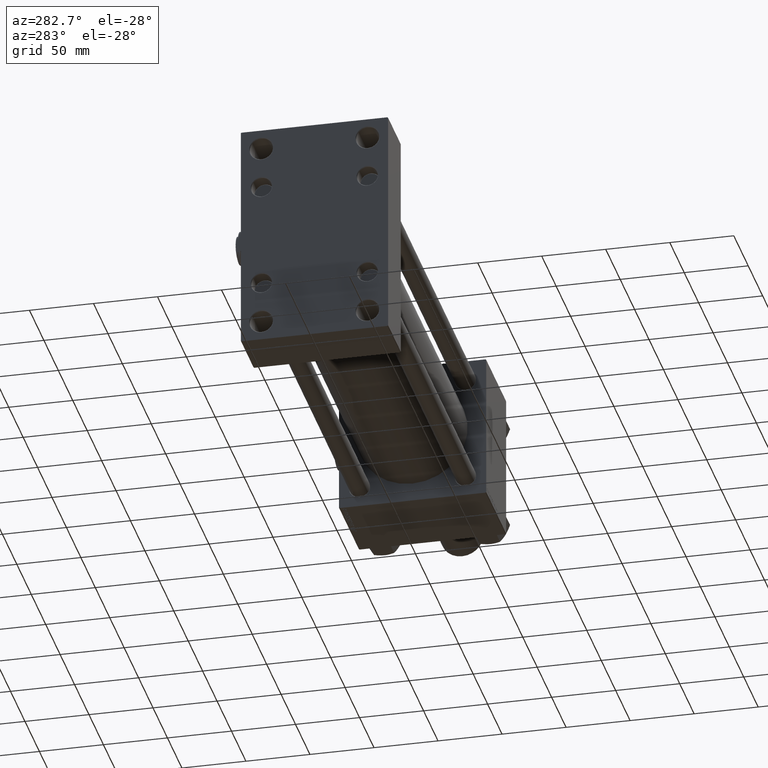
[diagram: clean part render]
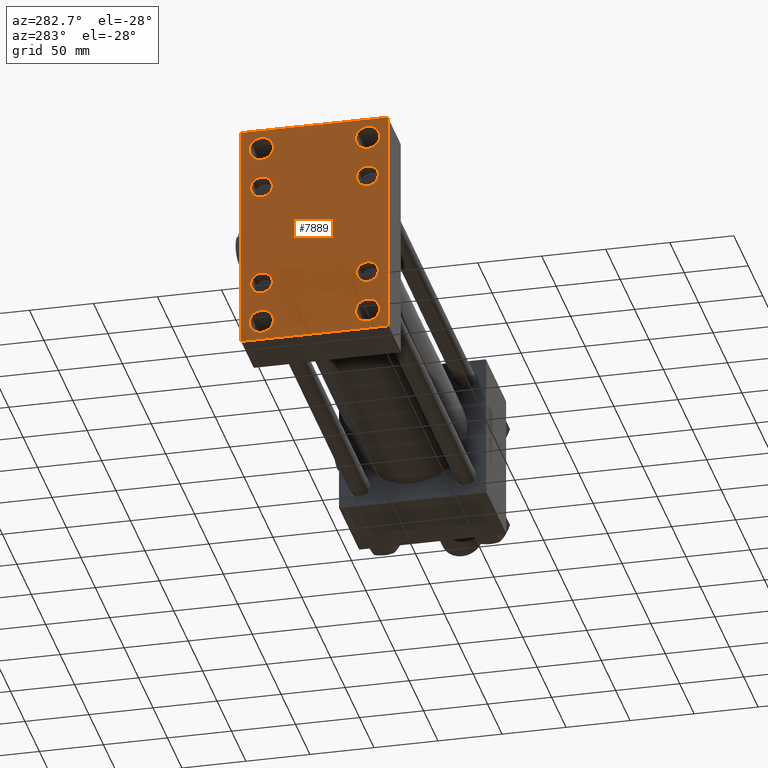
[diagram: same view with one face highlighted and labeled with its STEP entity id]
A machine part, auxiliary view. The second image highlights one B-rep face of the part: STEP entity #7889.
In plain terms, the highlighted planar face has unit normal (-1, 0, 0).
Its self-contained STEP definition (entity closure, byte-faithful):
#82 = DIRECTION ( 'NONE',  ( 0.000000000000000000, 0.000000000000000000, -1.000000000000000000 ) ) ;
#326 = FACE_BOUND ( 'NONE', #22719, .T. ) ;
#400 = LINE ( 'NONE', #25326, #9270 ) ;
#461 = AXIS2_PLACEMENT_3D ( 'NONE', #10137, #43005, #9590 ) ;
#630 = CARTESIAN_POINT ( 'NONE',  ( 0.000000000000000000, -41.34999999999998721, 49.84999999999999432 ) ) ;
#768 = ORIENTED_EDGE ( 'NONE', *, *, #23047, .T. ) ;
#802 = LINE ( 'NONE', #33373, #14663 ) ;
#1090 = LINE ( 'NONE', #13683, #13604 ) ;
#1304 = VERTEX_POINT ( 'NONE', #45889 ) ;
#1408 = AXIS2_PLACEMENT_3D ( 'NONE', #40172, #30864, #31404 ) ;
#1558 = LINE ( 'NONE', #48650, #52974 ) ;
#1758 = CARTESIAN_POINT ( 'NONE',  ( 0.000000000000000000, 57.00000000000000000, 90.00000000000000000 ) ) ;
#2103 = DIRECTION ( 'NONE',  ( 0.000000000000000000, -0.7071067811865622277, 0.7071067811865328068 ) ) ;
#2511 = DIRECTION ( 'NONE',  ( 0.000000000000000000, -1.000000000000000000, -1.206764157201257291E-16 ) ) ;
#3246 = VERTEX_POINT ( 'NONE', #1758 ) ;
#3369 = CARTESIAN_POINT ( 'NONE',  ( 0.000000000000000000, 0.000000000000000000, 0.000000000000000000 ) ) ;
#3426 = VERTEX_POINT ( 'NONE', #11835 ) ;
#3709 = DIRECTION ( 'NONE',  ( 0.000000000000000000, 0.000000000000000000, -1.000000000000000000 ) ) ;
#4227 = CARTESIAN_POINT ( 'NONE',  ( 0.000000000000000000, 41.34999999999999432, 41.35000000000000142 ) ) ;
#4452 = FACE_BOUND ( 'NONE', #36820, .T. ) ;
#4648 = CARTESIAN_POINT ( 'NONE',  ( 0.000000000000000000, 73.50000000000000000, -73.50000000000000000 ) ) ;
#5031 = VERTEX_POINT ( 'NONE', #630 ) ;
#5971 = EDGE_CURVE ( 'NONE', #21504, #10026, #38244, .T. ) ;
#6074 = AXIS2_PLACEMENT_3D ( 'NONE', #3369, #41414, #15956 ) ;
#6517 = DIRECTION ( 'NONE',  ( 0.000000000000000000, 0.000000000000000000, 1.000000000000000000 ) ) ;
#6527 = AXIS2_PLACEMENT_3D ( 'NONE', #15530, #52534, #6517 ) ;
#6712 = EDGE_CURVE ( 'NONE', #19462, #22601, #14903, .T. ) ;
#7258 = VERTEX_POINT ( 'NONE', #41949 ) ;
#7329 = CARTESIAN_POINT ( 'NONE',  ( 0.000000000000000000, 41.34999999999999432, -49.84999999999998721 ) ) ;
#7463 = CARTESIAN_POINT ( 'NONE',  ( 0.000000000000000000, 57.50000000000000000, -89.49999999999994316 ) ) ;
#7470 = FACE_BOUND ( 'NONE', #32845, .T. ) ;
#7526 = AXIS2_PLACEMENT_3D ( 'NONE', #15119, #20282, #32863 ) ;
#7679 = CIRCLE ( 'NONE', #45293, 8.499999999999980460 ) ;
#7889 = ADVANCED_FACE ( 'NONE', ( #50189, #25249, #4452, #7470, #37864, #40882, #326, #32379, #49914 ), #28275, .T. ) ;
#7902 = ORIENTED_EDGE ( 'NONE', *, *, #46101, .T. ) ;
#8075 = DIRECTION ( 'NONE',  ( 0.000000000000000000, 0.000000000000000000, 1.000000000000000000 ) ) ;
#8359 = EDGE_CURVE ( 'NONE', #49052, #45545, #22855, .T. ) ;
#8763 = CARTESIAN_POINT ( 'NONE',  ( 0.000000000000000000, -41.34999999999998721, -49.84999999999999432 ) ) ;
#9270 = VECTOR ( 'NONE', #3709, 1000.000000000000000 ) ;
#9590 = DIRECTION ( 'NONE',  ( 0.000000000000000000, 0.000000000000000000, 1.000000000000000000 ) ) ;
#10026 = VERTEX_POINT ( 'NONE', #49631 ) ;
#10137 = CARTESIAN_POINT ( 'NONE',  ( 0.000000000000000000, -41.50000000000000000, -74.50000000000000000 ) ) ;
#10657 = AXIS2_PLACEMENT_3D ( 'NONE', #48437, #24296, #32510 ) ;
#10692 = EDGE_CURVE ( 'NONE', #5031, #12954, #39522, .T. ) ;
#10710 = CARTESIAN_POINT ( 'NONE',  ( 0.000000000000000000, -41.50000000000000000, -84.00000000000011369 ) ) ;
#11211 = AXIS2_PLACEMENT_3D ( 'NONE', #34517, #25498, #21657 ) ;
#11330 = CARTESIAN_POINT ( 'NONE',  ( 0.000000000000000000, 41.34999999999999432, 32.85000000000002274 ) ) ;
#11685 = VERTEX_POINT ( 'NONE', #31122 ) ;
#11835 = CARTESIAN_POINT ( 'NONE',  ( 0.000000000000000000, -41.50000000000000000, 84.00000000000011369 ) ) ;
#11937 = DIRECTION ( 'NONE',  ( 1.000000000000000000, -0.000000000000000000, 0.000000000000000000 ) ) ;
#12236 = EDGE_LOOP ( 'NONE', ( #39107, #30654 ) ) ;
#12273 = CARTESIAN_POINT ( 'NONE',  ( 0.000000000000000000, 41.34999999999999432, -41.35000000000000142 ) ) ;
#12290 = CIRCLE ( 'NONE', #25385, 9.500000000000119016 ) ;
#12665 = AXIS2_PLACEMENT_3D ( 'NONE', #19863, #49179, #28871 ) ;
#12698 = CARTESIAN_POINT ( 'NONE',  ( 0.000000000000000000, 41.50000000000000711, 74.50000000000000000 ) ) ;
#12728 = CARTESIAN_POINT ( 'NONE',  ( 0.000000000000000000, -41.34999999999998721, 32.85000000000002984 ) ) ;
#12954 = VERTEX_POINT ( 'NONE', #12728 ) ;
#13246 = VERTEX_POINT ( 'NONE', #8763 ) ;
#13604 = VECTOR ( 'NONE', #37522, 1000.000000000000000 ) ;
#13683 = CARTESIAN_POINT ( 'NONE',  ( 0.000000000000000000, 73.50000000000157740, 73.49999999999748468 ) ) ;
#14663 = VECTOR ( 'NONE', #50108, 1000.000000000000000 ) ;
#14903 = CIRCLE ( 'NONE', #46408, 8.499999999999980460 ) ;
#15095 = CARTESIAN_POINT ( 'NONE',  ( 0.000000000000000000, 41.50000000000000711, 74.50000000000000000 ) ) ;
#15119 = CARTESIAN_POINT ( 'NONE',  ( 0.000000000000000000, -41.50000000000000000, 74.50000000000000000 ) ) ;
#15530 = CARTESIAN_POINT ( 'NONE',  ( 0.000000000000000000, -41.34999999999998721, -41.35000000000000853 ) ) ;
#15844 = DIRECTION ( 'NONE',  ( 0.000000000000000000, 0.000000000000000000, 1.000000000000000000 ) ) ;
#15956 = DIRECTION ( 'NONE',  ( -0.000000000000000000, 0.000000000000000000, 1.000000000000000000 ) ) ;
#16322 = CARTESIAN_POINT ( 'NONE',  ( 0.000000000000000000, 41.50000000000000711, -64.99999999999987210 ) ) ;
#16421 = CARTESIAN_POINT ( 'NONE',  ( 0.000000000000000000, -41.50000000000000000, -74.50000000000000000 ) ) ;
#16641 = VERTEX_POINT ( 'NONE', #7463 ) ;
#17413 = CARTESIAN_POINT ( 'NONE',  ( -0.000000000000000000, -73.49999999999960210, 73.50000000000062528 ) ) ;
#18109 = EDGE_CURVE ( 'NONE', #37628, #51354, #51028, .T. ) ;
#18253 = CIRCLE ( 'NONE', #20846, 9.500000000000119016 ) ;
#18372 = ORIENTED_EDGE ( 'NONE', *, *, #5971, .T. ) ;
#18553 = CARTESIAN_POINT ( 'NONE',  ( 0.000000000000000000, -57.49999999999999289, -89.49999999999998579 ) ) ;
#18946 = LINE ( 'NONE', #32320, #41662 ) ;
#19462 = VERTEX_POINT ( 'NONE', #32740 ) ;
#19861 = DIRECTION ( 'NONE',  ( 1.000000000000000000, -0.000000000000000000, 0.000000000000000000 ) ) ;
#19863 = CARTESIAN_POINT ( 'NONE',  ( 0.000000000000000000, 41.34999999999999432, -41.35000000000000142 ) ) ;
#19873 = EDGE_CURVE ( 'NONE', #7258, #11685, #48489, .T. ) ;
#20282 = DIRECTION ( 'NONE',  ( 1.000000000000000000, -0.000000000000000000, 0.000000000000000000 ) ) ;
#20846 = AXIS2_PLACEMENT_3D ( 'NONE', #28365, #11937, #53844 ) ;
#20955 = ORIENTED_EDGE ( 'NONE', *, *, #46036, .T. ) ;
#21336 = DIRECTION ( 'NONE',  ( -0.000000000000000000, -0.7071067811865474617, -0.7071067811865474617 ) ) ;
#21453 = ORIENTED_EDGE ( 'NONE', *, *, #49739, .T. ) ;
#21479 = EDGE_CURVE ( 'NONE', #51354, #37628, #31047, .T. ) ;
#21504 = VERTEX_POINT ( 'NONE', #36839 ) ;
#21657 = DIRECTION ( 'NONE',  ( 0.000000000000000000, 0.000000000000000000, 1.000000000000000000 ) ) ;
#21729 = ORIENTED_EDGE ( 'NONE', *, *, #24438, .F. ) ;
#22457 = CARTESIAN_POINT ( 'NONE',  ( 0.000000000000000000, 57.00000000000000000, -90.00000000000000000 ) ) ;
#22601 = VERTEX_POINT ( 'NONE', #11330 ) ;
#22719 = EDGE_LOOP ( 'NONE', ( #53598, #46182 ) ) ;
#22855 = CIRCLE ( 'NONE', #34207, 9.500000000000119016 ) ;
#22996 = EDGE_LOOP ( 'NONE', ( #38525, #20955, #7902, #31844, #25235, #18372, #21729, #32099 ) ) ;
#23047 = EDGE_CURVE ( 'NONE', #45545, #49052, #37209, .T. ) ;
#23688 = CARTESIAN_POINT ( 'NONE',  ( 0.000000000000000000, 41.34999999999999432, 41.35000000000000142 ) ) ;
#23761 = EDGE_CURVE ( 'NONE', #35924, #16641, #400, .T. ) ;
#24295 = CIRCLE ( 'NONE', #26928, 9.500000000000119016 ) ;
#24296 = DIRECTION ( 'NONE',  ( 1.000000000000000000, -0.000000000000000000, 0.000000000000000000 ) ) ;
#24438 = EDGE_CURVE ( 'NONE', #3246, #10026, #18946, .T. ) ;
#24773 = AXIS2_PLACEMENT_3D ( 'NONE', #12273, #28966, #15844 ) ;
#24999 = CARTESIAN_POINT ( 'NONE',  ( 0.000000000000000000, -57.49999999999999289, 89.99999999999998579 ) ) ;
#25235 = ORIENTED_EDGE ( 'NONE', *, *, #45786, .F. ) ;
#25249 = FACE_BOUND ( 'NONE', #46630, .T. ) ;
#25326 = CARTESIAN_POINT ( 'NONE',  ( 0.000000000000000000, 57.50000000000000000, 90.00000000000000000 ) ) ;
#25358 = VECTOR ( 'NONE', #50830, 1000.000000000000000 ) ;
#25385 = AXIS2_PLACEMENT_3D ( 'NONE', #15095, #27662, #44393 ) ;
#25448 = LINE ( 'NONE', #4648, #51358 ) ;
#25498 = DIRECTION ( 'NONE',  ( 1.000000000000000000, -0.000000000000000000, 0.000000000000000000 ) ) ;
#26192 = EDGE_CURVE ( 'NONE', #3246, #35924, #1090, .T. ) ;
#26928 = AXIS2_PLACEMENT_3D ( 'NONE', #48884, #40396, #32154 ) ;
#27662 = DIRECTION ( 'NONE',  ( 1.000000000000000000, -0.000000000000000000, 0.000000000000000000 ) ) ;
#27771 = EDGE_CURVE ( 'NONE', #44454, #43009, #28514, .T. ) ;
#28062 = ORIENTED_EDGE ( 'NONE', *, *, #40422, .T. ) ;
#28275 = PLANE ( 'NONE',  #6074 ) ;
#28352 = CIRCLE ( 'NONE', #6527, 8.499999999999980460 ) ;
#28365 = CARTESIAN_POINT ( 'NONE',  ( 0.000000000000000000, -41.50000000000000000, 74.50000000000000000 ) ) ;
#28514 = CIRCLE ( 'NONE', #1408, 9.500000000000119016 ) ;
#28518 = ORIENTED_EDGE ( 'NONE', *, *, #53768, .T. ) ;
#28871 = DIRECTION ( 'NONE',  ( 0.000000000000000000, 0.000000000000000000, 1.000000000000000000 ) ) ;
#28966 = DIRECTION ( 'NONE',  ( 1.000000000000000000, -0.000000000000000000, 0.000000000000000000 ) ) ;
#29394 = DIRECTION ( 'NONE',  ( 1.000000000000000000, -0.000000000000000000, 0.000000000000000000 ) ) ;
#30654 = ORIENTED_EDGE ( 'NONE', *, *, #31413, .T. ) ;
#30864 = DIRECTION ( 'NONE',  ( 1.000000000000000000, -0.000000000000000000, 0.000000000000000000 ) ) ;
#31047 = CIRCLE ( 'NONE', #12665, 8.499999999999980460 ) ;
#31122 = CARTESIAN_POINT ( 'NONE',  ( 0.000000000000000000, 41.50000000000000711, 84.00000000000011369 ) ) ;
#31404 = DIRECTION ( 'NONE',  ( 0.000000000000000000, 0.000000000000000000, 1.000000000000000000 ) ) ;
#31413 = EDGE_CURVE ( 'NONE', #13246, #34177, #54060, .T. ) ;
#31844 = ORIENTED_EDGE ( 'NONE', *, *, #38712, .T. ) ;
#31907 = DIRECTION ( 'NONE',  ( 1.000000000000000000, -0.000000000000000000, 0.000000000000000000 ) ) ;
#32099 = ORIENTED_EDGE ( 'NONE', *, *, #26192, .T. ) ;
#32154 = DIRECTION ( 'NONE',  ( 0.000000000000000000, 0.000000000000000000, 1.000000000000000000 ) ) ;
#32320 = CARTESIAN_POINT ( 'NONE',  ( 0.000000000000000000, 57.50000000000000000, 90.00000000000000000 ) ) ;
#32379 = FACE_BOUND ( 'NONE', #34156, .T. ) ;
#32510 = DIRECTION ( 'NONE',  ( 0.000000000000000000, 0.000000000000000000, 1.000000000000000000 ) ) ;
#32693 = DIRECTION ( 'NONE',  ( 1.000000000000000000, -0.000000000000000000, 0.000000000000000000 ) ) ;
#32740 = CARTESIAN_POINT ( 'NONE',  ( 0.000000000000000000, 41.34999999999999432, 49.84999999999998721 ) ) ;
#32845 = EDGE_LOOP ( 'NONE', ( #45897, #45837 ) ) ;
#32863 = DIRECTION ( 'NONE',  ( 0.000000000000000000, 0.000000000000000000, 1.000000000000000000 ) ) ;
#33373 = CARTESIAN_POINT ( 'NONE',  ( 0.000000000000000000, 57.50000000000000000, -90.00000000000000000 ) ) ;
#34156 = EDGE_LOOP ( 'NONE', ( #50205, #42175 ) ) ;
#34177 = VERTEX_POINT ( 'NONE', #41128 ) ;
#34207 = AXIS2_PLACEMENT_3D ( 'NONE', #16421, #44926, #41352 ) ;
#34517 = CARTESIAN_POINT ( 'NONE',  ( 0.000000000000000000, -41.34999999999998721, -41.35000000000000853 ) ) ;
#35583 = EDGE_CURVE ( 'NONE', #34177, #13246, #28352, .T. ) ;
#35924 = VERTEX_POINT ( 'NONE', #48623 ) ;
#36820 = EDGE_LOOP ( 'NONE', ( #44414, #768 ) ) ;
#36839 = CARTESIAN_POINT ( 'NONE',  ( 0.000000000000000000, -57.49999999999999289, 89.50000000000001421 ) ) ;
#37209 = CIRCLE ( 'NONE', #461, 9.500000000000119016 ) ;
#37278 = CIRCLE ( 'NONE', #7526, 9.500000000000119016 ) ;
#37522 = DIRECTION ( 'NONE',  ( 0.000000000000000000, 0.7071067811865279218, -0.7071067811865672237 ) ) ;
#37628 = VERTEX_POINT ( 'NONE', #7329 ) ;
#37864 = FACE_BOUND ( 'NONE', #52207, .T. ) ;
#37907 = DIRECTION ( 'NONE',  ( 0.000000000000000000, 0.000000000000000000, 1.000000000000000000 ) ) ;
#38067 = CARTESIAN_POINT ( 'NONE',  ( 0.000000000000000000, -41.50000000000000000, 64.99999999999987210 ) ) ;
#38244 = LINE ( 'NONE', #17413, #25358 ) ;
#38460 = VERTEX_POINT ( 'NONE', #38067 ) ;
#38525 = ORIENTED_EDGE ( 'NONE', *, *, #23761, .T. ) ;
#38712 = EDGE_CURVE ( 'NONE', #1304, #48518, #1558, .T. ) ;
#39107 = ORIENTED_EDGE ( 'NONE', *, *, #35583, .T. ) ;
#39522 = CIRCLE ( 'NONE', #10657, 8.499999999999980460 ) ;
#39619 = DIRECTION ( 'NONE',  ( 0.000000000000000000, 0.000000000000000000, 1.000000000000000000 ) ) ;
#39807 = CARTESIAN_POINT ( 'NONE',  ( 0.000000000000000000, 41.34999999999999432, -32.85000000000002274 ) ) ;
#40172 = CARTESIAN_POINT ( 'NONE',  ( 0.000000000000000000, 41.50000000000000711, -74.50000000000000000 ) ) ;
#40396 = DIRECTION ( 'NONE',  ( 1.000000000000000000, -0.000000000000000000, 0.000000000000000000 ) ) ;
#40422 = EDGE_CURVE ( 'NONE', #38460, #3426, #37278, .T. ) ;
#40882 = FACE_BOUND ( 'NONE', #12236, .T. ) ;
#41128 = CARTESIAN_POINT ( 'NONE',  ( 0.000000000000000000, -41.34999999999998721, -32.85000000000002984 ) ) ;
#41352 = DIRECTION ( 'NONE',  ( 0.000000000000000000, 0.000000000000000000, 1.000000000000000000 ) ) ;
#41414 = DIRECTION ( 'NONE',  ( -1.000000000000000000, 0.000000000000000000, -0.000000000000000000 ) ) ;
#41662 = VECTOR ( 'NONE', #2511, 1000.000000000000000 ) ;
#41805 = VERTEX_POINT ( 'NONE', #22457 ) ;
#41949 = CARTESIAN_POINT ( 'NONE',  ( 0.000000000000000000, 41.50000000000000711, 64.99999999999987210 ) ) ;
#42175 = ORIENTED_EDGE ( 'NONE', *, *, #45112, .T. ) ;
#42536 = LINE ( 'NONE', #24999, #46201 ) ;
#43005 = DIRECTION ( 'NONE',  ( 1.000000000000000000, -0.000000000000000000, 0.000000000000000000 ) ) ;
#43009 = VERTEX_POINT ( 'NONE', #16322 ) ;
#43511 = CARTESIAN_POINT ( 'NONE',  ( 0.000000000000000000, 41.50000000000000711, -84.00000000000011369 ) ) ;
#44016 = EDGE_CURVE ( 'NONE', #43009, #44454, #24295, .T. ) ;
#44111 = AXIS2_PLACEMENT_3D ( 'NONE', #12698, #29394, #37907 ) ;
#44393 = DIRECTION ( 'NONE',  ( 0.000000000000000000, 0.000000000000000000, 1.000000000000000000 ) ) ;
#44414 = ORIENTED_EDGE ( 'NONE', *, *, #8359, .T. ) ;
#44454 = VERTEX_POINT ( 'NONE', #43511 ) ;
#44690 = ORIENTED_EDGE ( 'NONE', *, *, #10692, .T. ) ;
#44926 = DIRECTION ( 'NONE',  ( 1.000000000000000000, -0.000000000000000000, 0.000000000000000000 ) ) ;
#45057 = CARTESIAN_POINT ( 'NONE',  ( 0.000000000000000000, -41.34999999999998721, 41.35000000000000853 ) ) ;
#45112 = EDGE_CURVE ( 'NONE', #22601, #19462, #50462, .T. ) ;
#45293 = AXIS2_PLACEMENT_3D ( 'NONE', #45057, #19861, #8075 ) ;
#45315 = DIRECTION ( 'NONE',  ( 0.000000000000000000, 0.000000000000000000, 1.000000000000000000 ) ) ;
#45545 = VERTEX_POINT ( 'NONE', #10710 ) ;
#45786 = EDGE_CURVE ( 'NONE', #21504, #48518, #42536, .T. ) ;
#45837 = ORIENTED_EDGE ( 'NONE', *, *, #27771, .T. ) ;
#45889 = CARTESIAN_POINT ( 'NONE',  ( 0.000000000000000000, -56.99999999999998579, -90.00000000000002842 ) ) ;
#45897 = ORIENTED_EDGE ( 'NONE', *, *, #44016, .T. ) ;
#46036 = EDGE_CURVE ( 'NONE', #16641, #41805, #25448, .T. ) ;
#46093 = CARTESIAN_POINT ( 'NONE',  ( 0.000000000000000000, -41.50000000000000000, -64.99999999999987210 ) ) ;
#46101 = EDGE_CURVE ( 'NONE', #41805, #1304, #802, .T. ) ;
#46182 = ORIENTED_EDGE ( 'NONE', *, *, #18109, .T. ) ;
#46201 = VECTOR ( 'NONE', #82, 1000.000000000000000 ) ;
#46408 = AXIS2_PLACEMENT_3D ( 'NONE', #23688, #31907, #39619 ) ;
#46630 = EDGE_LOOP ( 'NONE', ( #21453, #28062 ) ) ;
#47373 = EDGE_LOOP ( 'NONE', ( #28518, #49464 ) ) ;
#47408 = EDGE_CURVE ( 'NONE', #12954, #5031, #7679, .T. ) ;
#48437 = CARTESIAN_POINT ( 'NONE',  ( 0.000000000000000000, -41.34999999999998721, 41.35000000000000853 ) ) ;
#48489 = CIRCLE ( 'NONE', #44111, 9.500000000000119016 ) ;
#48518 = VERTEX_POINT ( 'NONE', #18553 ) ;
#48623 = CARTESIAN_POINT ( 'NONE',  ( 0.000000000000000000, 57.50000000000000000, 89.49999999999997158 ) ) ;
#48650 = CARTESIAN_POINT ( 'NONE',  ( 0.000000000000000000, -73.49999999999882050, -73.50000000000189004 ) ) ;
#48884 = CARTESIAN_POINT ( 'NONE',  ( 0.000000000000000000, 41.50000000000000711, -74.50000000000000000 ) ) ;
#49052 = VERTEX_POINT ( 'NONE', #46093 ) ;
#49179 = DIRECTION ( 'NONE',  ( 1.000000000000000000, -0.000000000000000000, 0.000000000000000000 ) ) ;
#49347 = ORIENTED_EDGE ( 'NONE', *, *, #47408, .T. ) ;
#49464 = ORIENTED_EDGE ( 'NONE', *, *, #19873, .T. ) ;
#49631 = CARTESIAN_POINT ( 'NONE',  ( 0.000000000000000000, -57.00000000000001421, 89.99999999999998579 ) ) ;
#49739 = EDGE_CURVE ( 'NONE', #3426, #38460, #18253, .T. ) ;
#49914 = FACE_OUTER_BOUND ( 'NONE', #22996, .T. ) ;
#50108 = DIRECTION ( 'NONE',  ( 0.000000000000000000, -1.000000000000000000, -2.413528314402514583E-16 ) ) ;
#50189 = FACE_BOUND ( 'NONE', #47373, .T. ) ;
#50205 = ORIENTED_EDGE ( 'NONE', *, *, #6712, .T. ) ;
#50462 = CIRCLE ( 'NONE', #53076, 8.499999999999980460 ) ;
#50830 = DIRECTION ( 'NONE',  ( -0.000000000000000000, 0.7071067811865524577, 0.7071067811865426878 ) ) ;
#51028 = CIRCLE ( 'NONE', #24773, 8.499999999999980460 ) ;
#51354 = VERTEX_POINT ( 'NONE', #39807 ) ;
#51358 = VECTOR ( 'NONE', #21336, 1000.000000000000114 ) ;
#52207 = EDGE_LOOP ( 'NONE', ( #44690, #49347 ) ) ;
#52534 = DIRECTION ( 'NONE',  ( 1.000000000000000000, -0.000000000000000000, 0.000000000000000000 ) ) ;
#52974 = VECTOR ( 'NONE', #2103, 1000.000000000000000 ) ;
#53076 = AXIS2_PLACEMENT_3D ( 'NONE', #4227, #32693, #45315 ) ;
#53598 = ORIENTED_EDGE ( 'NONE', *, *, #21479, .T. ) ;
#53768 = EDGE_CURVE ( 'NONE', #11685, #7258, #12290, .T. ) ;
#53844 = DIRECTION ( 'NONE',  ( 0.000000000000000000, 0.000000000000000000, 1.000000000000000000 ) ) ;
#54060 = CIRCLE ( 'NONE', #11211, 8.499999999999980460 ) ;